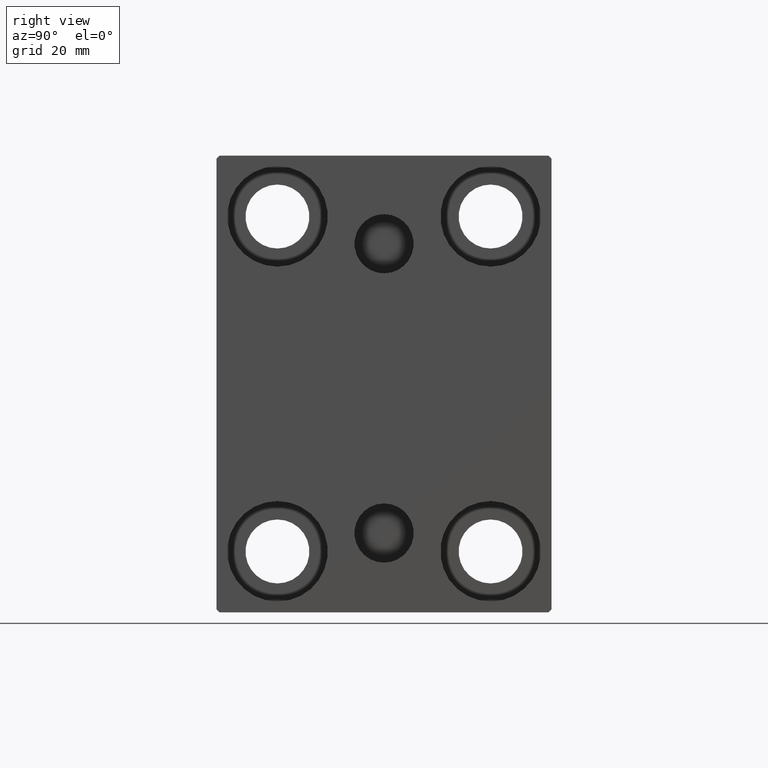
[diagram: clean part render]
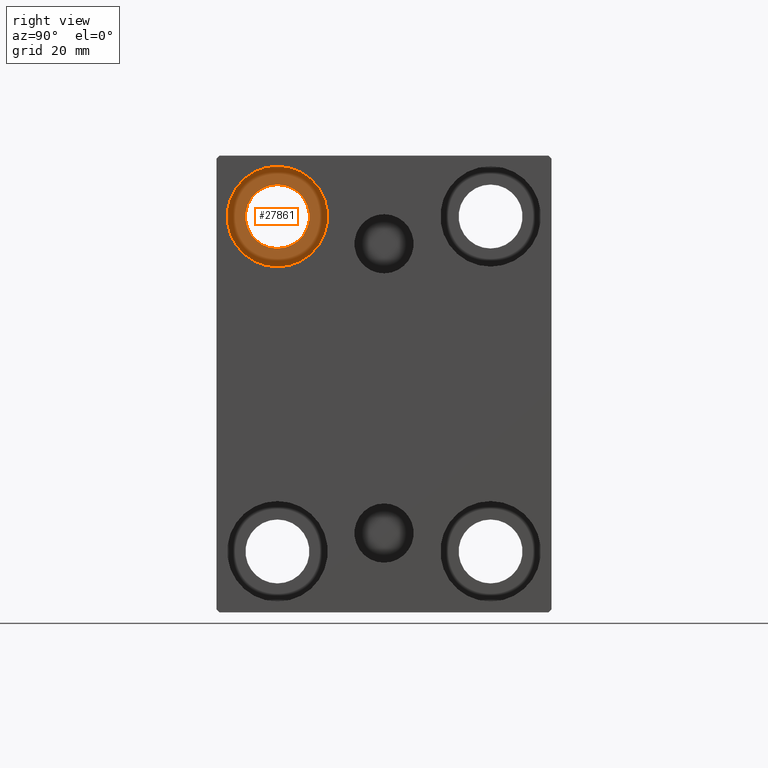
[diagram: same view with one face highlighted and labeled with its STEP entity id]
A machine part, right view. The second image highlights one B-rep face of the part: STEP entity #27861.
In plain terms, the highlighted planar face has unit normal (1, 0, 0).
Its self-contained STEP definition (entity closure, byte-faithful):
#19 = DIRECTION ( 'NONE',  ( 0.000000000000000000, 0.000000000000000000, 1.000000000000000000 ) ) ;
#420 = VERTEX_POINT ( 'NONE', #14031 ) ;
#1475 = DIRECTION ( 'NONE',  ( 1.000000000000000000, 0.000000000000000000, -0.000000000000000000 ) ) ;
#1682 = CARTESIAN_POINT ( 'NONE',  ( 54.00000000000000711, 0.000000000000000000, 0.000000000000000000 ) ) ;
#2598 = CARTESIAN_POINT ( 'NONE',  ( 54.00000000000000711, -17.49999999999999645, 19.25000000000000000 ) ) ;
#2604 = DIRECTION ( 'NONE',  ( 0.000000000000000000, 0.000000000000000000, 1.000000000000000000 ) ) ;
#3602 = CARTESIAN_POINT ( 'NONE',  ( 54.00000000000000711, -17.49999999999999645, 32.74999999999999289 ) ) ;
#4645 = AXIS2_PLACEMENT_3D ( 'NONE', #24692, #31725, #38103 ) ;
#5015 = EDGE_CURVE ( 'NONE', #420, #29260, #6046, .T. ) ;
#6046 = CIRCLE ( 'NONE', #4645, 5.249999999999997335 ) ;
#7744 = AXIS2_PLACEMENT_3D ( 'NONE', #42699, #29699, #2604 ) ;
#7864 = ORIENTED_EDGE ( 'NONE', *, *, #32289, .F. ) ;
#8081 = PLANE ( 'NONE',  #31391 ) ;
#10150 = DIRECTION ( 'NONE',  ( -1.000000000000000000, -0.000000000000000000, -0.000000000000000000 ) ) ;
#11108 = CARTESIAN_POINT ( 'NONE',  ( 54.00000000000000711, -17.49999999999999645, 35.74999999999999289 ) ) ;
#13357 = CIRCLE ( 'NONE', #7744, 8.249999999999992895 ) ;
#13988 = CIRCLE ( 'NONE', #29445, 5.249999999999997335 ) ;
#14031 = CARTESIAN_POINT ( 'NONE',  ( 54.00000000000000711, -17.49999999999999645, 22.25000000000000000 ) ) ;
#15349 = ORIENTED_EDGE ( 'NONE', *, *, #17304, .T. ) ;
#16165 = DIRECTION ( 'NONE',  ( 0.000000000000000000, 0.000000000000000000, 1.000000000000000000 ) ) ;
#17304 = EDGE_CURVE ( 'NONE', #29260, #420, #13988, .T. ) ;
#17867 = CARTESIAN_POINT ( 'NONE',  ( 54.00000000000000711, -17.49999999999999645, 27.49999999999999645 ) ) ;
#19469 = FACE_BOUND ( 'NONE', #40790, .T. ) ;
#20080 = VERTEX_POINT ( 'NONE', #11108 ) ;
#24692 = CARTESIAN_POINT ( 'NONE',  ( 54.00000000000000711, -17.49999999999999645, 27.49999999999999645 ) ) ;
#25827 = ORIENTED_EDGE ( 'NONE', *, *, #5015, .T. ) ;
#27861 = ADVANCED_FACE ( 'NONE', ( #42218, #19469 ), #8081, .T. ) ;
#29260 = VERTEX_POINT ( 'NONE', #3602 ) ;
#29445 = AXIS2_PLACEMENT_3D ( 'NONE', #17867, #38333, #37910 ) ;
#29699 = DIRECTION ( 'NONE',  ( -1.000000000000000000, -0.000000000000000000, -0.000000000000000000 ) ) ;
#30345 = ORIENTED_EDGE ( 'NONE', *, *, #43101, .F. ) ;
#31317 = EDGE_LOOP ( 'NONE', ( #30345, #7864 ) ) ;
#31391 = AXIS2_PLACEMENT_3D ( 'NONE', #1682, #1475, #16165 ) ;
#31725 = DIRECTION ( 'NONE',  ( -1.000000000000000000, -0.000000000000000000, -0.000000000000000000 ) ) ;
#32289 = EDGE_CURVE ( 'NONE', #20080, #33644, #39962, .T. ) ;
#33644 = VERTEX_POINT ( 'NONE', #2598 ) ;
#37141 = AXIS2_PLACEMENT_3D ( 'NONE', #43201, #10150, #19 ) ;
#37910 = DIRECTION ( 'NONE',  ( 0.000000000000000000, 0.000000000000000000, -1.000000000000000000 ) ) ;
#38103 = DIRECTION ( 'NONE',  ( 0.000000000000000000, 0.000000000000000000, -1.000000000000000000 ) ) ;
#38333 = DIRECTION ( 'NONE',  ( -1.000000000000000000, -0.000000000000000000, -0.000000000000000000 ) ) ;
#39962 = CIRCLE ( 'NONE', #37141, 8.249999999999992895 ) ;
#40790 = EDGE_LOOP ( 'NONE', ( #15349, #25827 ) ) ;
#42218 = FACE_OUTER_BOUND ( 'NONE', #31317, .T. ) ;
#42699 = CARTESIAN_POINT ( 'NONE',  ( 54.00000000000000711, -17.49999999999999645, 27.49999999999999645 ) ) ;
#43101 = EDGE_CURVE ( 'NONE', #33644, #20080, #13357, .T. ) ;
#43201 = CARTESIAN_POINT ( 'NONE',  ( 54.00000000000000711, -17.49999999999999645, 27.49999999999999645 ) ) ;